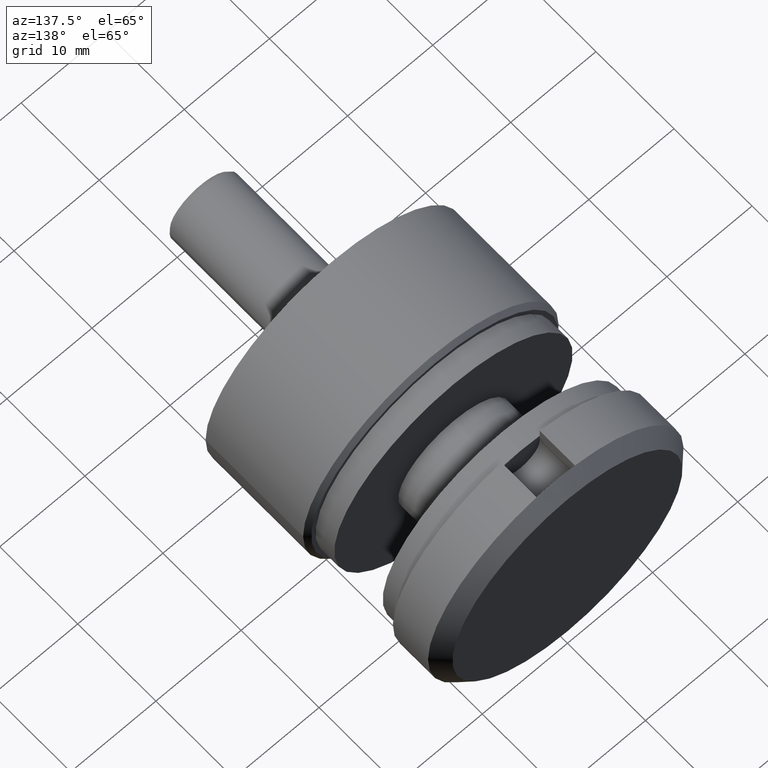
[diagram: clean part render]
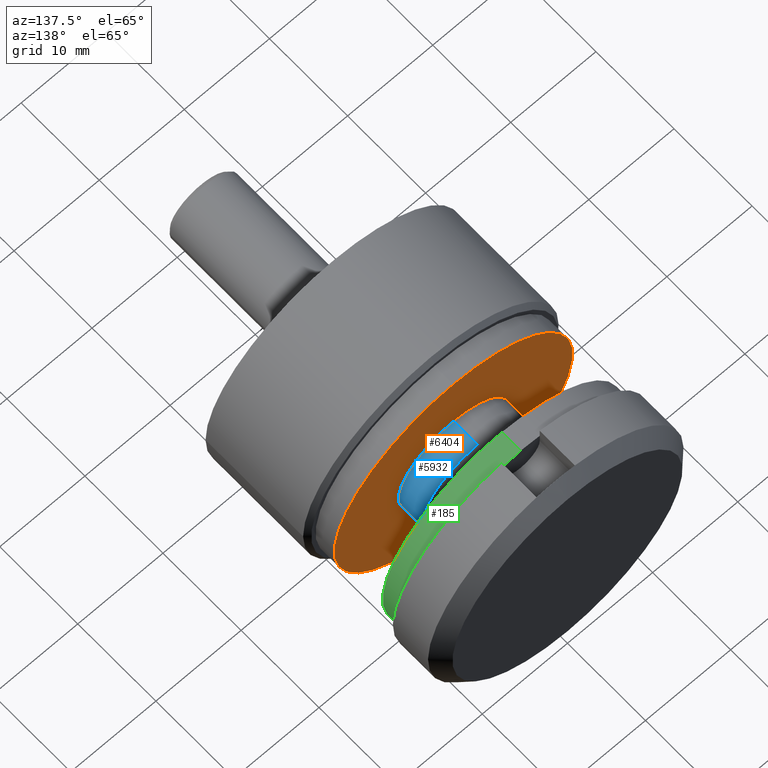
[diagram: same view with three faces highlighted in distinct colors, each labeled with its STEP entity id]
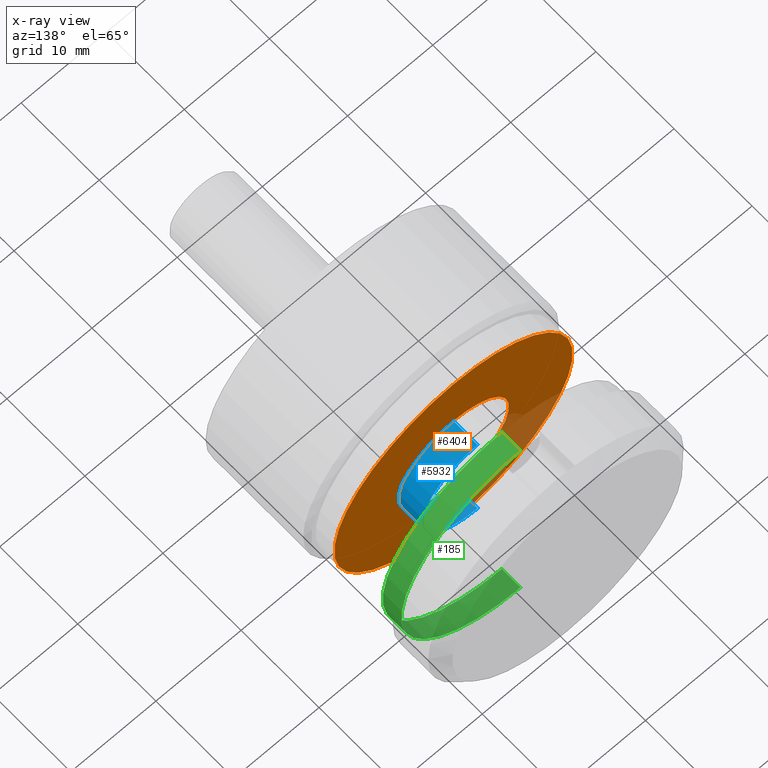
[diagram: x-ray of the same camera — body ghosted, the three highlighted faces saturated]
A machine part, auxiliary view with three faces highlighted in distinct colors.
The next image is the same camera in x-ray (body ghosted, the three faces saturated) — at least one of them is partly hidden behind the body in this view.
Their STEP definitions:

[orange] entity #6404 — the highlighted planar face has unit normal (0, 1, 0).
#458 = DIRECTION ( 'NONE',  ( 0.000000000000000000, 0.000000000000000000, -1.000000000000000000 ) ) ;
#991 = DIRECTION ( 'NONE',  ( 0.000000000000000000, -0.000000000000000000, 1.000000000000000000 ) ) ;
#1909 = DIRECTION ( 'NONE',  ( -0.000000000000000000, -1.000000000000000000, -0.000000000000000000 ) ) ;
#2690 = EDGE_LOOP ( 'NONE', ( #5289, #2822 ) ) ;
#2755 = AXIS2_PLACEMENT_3D ( 'NONE', #13704, #4152, #5373 ) ;
#2822 = ORIENTED_EDGE ( 'NONE', *, *, #7970, .T. ) ;
#2877 = CARTESIAN_POINT ( 'NONE',  ( 1.714505518806294638E-15, 2.399999999999999911, 14.00000000000000000 ) ) ;
#3010 = FACE_OUTER_BOUND ( 'NONE', #11931, .T. ) ;
#3505 = CIRCLE ( 'NONE', #3657, 6.500000000000000000 ) ;
#3657 = AXIS2_PLACEMENT_3D ( 'NONE', #7764, #4283, #458 ) ;
#3809 = AXIS2_PLACEMENT_3D ( 'NONE', #15114, #1909, #7878 ) ;
#4152 = DIRECTION ( 'NONE',  ( -0.000000000000000000, -1.000000000000000000, -0.000000000000000000 ) ) ;
#4159 = FACE_BOUND ( 'NONE', #2690, .T. ) ;
#4283 = DIRECTION ( 'NONE',  ( -0.000000000000000000, -1.000000000000000000, -0.000000000000000000 ) ) ;
#4286 = EDGE_CURVE ( 'NONE', #15758, #4973, #8585, .T. ) ;
#4366 = DIRECTION ( 'NONE',  ( -0.000000000000000000, -1.000000000000000000, -0.000000000000000000 ) ) ;
#4973 = VERTEX_POINT ( 'NONE', #15163 ) ;
#5289 = ORIENTED_EDGE ( 'NONE', *, *, #10770, .T. ) ;
#5373 = DIRECTION ( 'NONE',  ( 0.000000000000000000, 0.000000000000000000, -1.000000000000000000 ) ) ;
#5769 = CARTESIAN_POINT ( 'NONE',  ( 7.960204194457796463E-16, 2.399999999999999023, 6.500000000000000888 ) ) ;
#6404 = ADVANCED_FACE ( 'NONE', ( #4159, #3010 ), #11927, .T. ) ;
#6591 = CARTESIAN_POINT ( 'NONE',  ( 0.000000000000000000, 2.399999999999999023, 0.000000000000000000 ) ) ;
#7603 = VERTEX_POINT ( 'NONE', #5769 ) ;
#7764 = CARTESIAN_POINT ( 'NONE',  ( 0.000000000000000000, 2.399999999999999023, 0.000000000000000000 ) ) ;
#7878 = DIRECTION ( 'NONE',  ( 0.000000000000000000, 0.000000000000000000, -1.000000000000000000 ) ) ;
#7970 = EDGE_CURVE ( 'NONE', #7603, #13804, #8634, .T. ) ;
#8189 = CIRCLE ( 'NONE', #2755, 14.00000000000000000 ) ;
#8585 = CIRCLE ( 'NONE', #3809, 14.00000000000000000 ) ;
#8634 = CIRCLE ( 'NONE', #8999, 6.500000000000000000 ) ;
#8999 = AXIS2_PLACEMENT_3D ( 'NONE', #6591, #4366, #15077 ) ;
#9450 = CARTESIAN_POINT ( 'NONE',  ( 14.00000000000000000, 2.399999999999999467, 0.000000000000000000 ) ) ;
#10770 = EDGE_CURVE ( 'NONE', #13804, #7603, #3505, .T. ) ;
#10934 = ORIENTED_EDGE ( 'NONE', *, *, #4286, .F. ) ;
#11927 = PLANE ( 'NONE',  #12099 ) ;
#11931 = EDGE_LOOP ( 'NONE', ( #13714, #10934 ) ) ;
#12099 = AXIS2_PLACEMENT_3D ( 'NONE', #9450, #13084, #991 ) ;
#13084 = DIRECTION ( 'NONE',  ( 0.000000000000000000, 1.000000000000000000, 0.000000000000000000 ) ) ;
#13704 = CARTESIAN_POINT ( 'NONE',  ( 0.000000000000000000, 2.399999999999999911, 0.000000000000000000 ) ) ;
#13714 = ORIENTED_EDGE ( 'NONE', *, *, #15575, .F. ) ;
#13804 = VERTEX_POINT ( 'NONE', #15369 ) ;
#15077 = DIRECTION ( 'NONE',  ( 0.000000000000000000, 0.000000000000000000, -1.000000000000000000 ) ) ;
#15114 = CARTESIAN_POINT ( 'NONE',  ( 0.000000000000000000, 2.399999999999999911, 0.000000000000000000 ) ) ;
#15163 = CARTESIAN_POINT ( 'NONE',  ( 0.000000000000000000, 2.399999999999999911, -14.00000000000000000 ) ) ;
#15369 = CARTESIAN_POINT ( 'NONE',  ( 0.000000000000000000, 2.399999999999999023, -6.500000000000000000 ) ) ;
#15575 = EDGE_CURVE ( 'NONE', #4973, #15758, #8189, .T. ) ;
#15758 = VERTEX_POINT ( 'NONE', #2877 ) ;

[blue] entity #5932 — the highlighted cylindrical surface (partial cylindrical patch) has radius 6.5 mm, axis along (-0, -1, -0).
#458 = DIRECTION ( 'NONE',  ( 0.000000000000000000, 0.000000000000000000, -1.000000000000000000 ) ) ;
#2333 = DIRECTION ( 'NONE',  ( 0.000000000000000000, 0.000000000000000000, -1.000000000000000000 ) ) ;
#3505 = CIRCLE ( 'NONE', #3657, 6.500000000000000000 ) ;
#3613 = CIRCLE ( 'NONE', #9225, 6.499999999999999112 ) ;
#3657 = AXIS2_PLACEMENT_3D ( 'NONE', #7764, #4283, #458 ) ;
#4283 = DIRECTION ( 'NONE',  ( -0.000000000000000000, -1.000000000000000000, -0.000000000000000000 ) ) ;
#4568 = CARTESIAN_POINT ( 'NONE',  ( 0.000000000000000000, 5.500000000000000000, -6.499999999999999112 ) ) ;
#4636 = LINE ( 'NONE', #5098, #12057 ) ;
#5098 = CARTESIAN_POINT ( 'NONE',  ( 0.000000000000000000, 0.000000000000000000, -6.499999999999999112 ) ) ;
#5769 = CARTESIAN_POINT ( 'NONE',  ( 7.960204194457796463E-16, 2.399999999999999023, 6.500000000000000888 ) ) ;
#5932 = ADVANCED_FACE ( 'NONE', ( #13997 ), #11332, .T. ) ;
#6002 = ORIENTED_EDGE ( 'NONE', *, *, #12557, .T. ) ;
#6780 = ORIENTED_EDGE ( 'NONE', *, *, #10770, .F. ) ;
#6803 = ORIENTED_EDGE ( 'NONE', *, *, #9498, .F. ) ;
#7337 = CARTESIAN_POINT ( 'NONE',  ( 0.000000000000000000, 5.500000000000000000, 0.000000000000000000 ) ) ;
#7603 = VERTEX_POINT ( 'NONE', #5769 ) ;
#7764 = CARTESIAN_POINT ( 'NONE',  ( 0.000000000000000000, 2.399999999999999023, 0.000000000000000000 ) ) ;
#8302 = EDGE_LOOP ( 'NONE', ( #10148, #6002, #6780, #6803 ) ) ;
#8353 = DIRECTION ( 'NONE',  ( -0.000000000000000000, -1.000000000000000000, -0.000000000000000000 ) ) ;
#8519 = DIRECTION ( 'NONE',  ( -0.000000000000000000, -1.000000000000000000, -0.000000000000000000 ) ) ;
#8854 = VERTEX_POINT ( 'NONE', #4568 ) ;
#9095 = AXIS2_PLACEMENT_3D ( 'NONE', #11995, #8353, #2333 ) ;
#9225 = AXIS2_PLACEMENT_3D ( 'NONE', #7337, #8519, #14631 ) ;
#9498 = EDGE_CURVE ( 'NONE', #8854, #13804, #4636, .T. ) ;
#9871 = EDGE_CURVE ( 'NONE', #8854, #15358, #3613, .T. ) ;
#10148 = ORIENTED_EDGE ( 'NONE', *, *, #9871, .T. ) ;
#10770 = EDGE_CURVE ( 'NONE', #13804, #7603, #3505, .T. ) ;
#10963 = DIRECTION ( 'NONE',  ( -0.000000000000000000, -1.000000000000000000, -0.000000000000000000 ) ) ;
#11332 = CYLINDRICAL_SURFACE ( 'NONE', #9095, 6.499999999999999112 ) ;
#11836 = LINE ( 'NONE', #12142, #14655 ) ;
#11995 = CARTESIAN_POINT ( 'NONE',  ( 0.000000000000000000, 0.000000000000000000, 0.000000000000000000 ) ) ;
#12057 = VECTOR ( 'NONE', #13442, 1000.000000000000000 ) ;
#12142 = CARTESIAN_POINT ( 'NONE',  ( 7.960204194457794491E-16, 0.000000000000000000, 6.499999999999999112 ) ) ;
#12557 = EDGE_CURVE ( 'NONE', #15358, #7603, #11836, .T. ) ;
#13442 = DIRECTION ( 'NONE',  ( -0.000000000000000000, -1.000000000000000000, -0.000000000000000000 ) ) ;
#13804 = VERTEX_POINT ( 'NONE', #15369 ) ;
#13997 = FACE_OUTER_BOUND ( 'NONE', #8302, .T. ) ;
#14260 = CARTESIAN_POINT ( 'NONE',  ( 7.960204194457794491E-16, 5.500000000000000000, 6.499999999999999112 ) ) ;
#14631 = DIRECTION ( 'NONE',  ( 0.000000000000000000, 0.000000000000000000, -1.000000000000000000 ) ) ;
#14655 = VECTOR ( 'NONE', #10963, 1000.000000000000000 ) ;
#15358 = VERTEX_POINT ( 'NONE', #14260 ) ;
#15369 = CARTESIAN_POINT ( 'NONE',  ( 0.000000000000000000, 2.399999999999999023, -6.500000000000000000 ) ) ;

[green] entity #185 — the highlighted cylindrical surface (partial cylindrical patch) has radius 14 mm, axis along (0, 1, -0).
#89 = DIRECTION ( 'NONE',  ( -0.000000000000000000, -1.000000000000000000, -0.000000000000000000 ) ) ;
#185 = ADVANCED_FACE ( 'NONE', ( #5339 ), #4419, .T. ) ;
#925 = ORIENTED_EDGE ( 'NONE', *, *, #6073, .T. ) ;
#1202 = CARTESIAN_POINT ( 'NONE',  ( 0.000000000000000000, 0.000000000000000000, -14.00000000000000000 ) ) ;
#1324 = DIRECTION ( 'NONE',  ( -0.000000000000000000, -1.000000000000000000, -0.000000000000000000 ) ) ;
#1478 = CIRCLE ( 'NONE', #5344, 14.00000000000000000 ) ;
#1819 = CARTESIAN_POINT ( 'NONE',  ( 1.714505518806294638E-15, 0.000000000000000000, 14.00000000000000000 ) ) ;
#1909 = DIRECTION ( 'NONE',  ( -0.000000000000000000, -1.000000000000000000, -0.000000000000000000 ) ) ;
#2208 = CARTESIAN_POINT ( 'NONE',  ( 0.000000000000000000, 0.000000000000000000, 0.000000000000000000 ) ) ;
#2289 = DIRECTION ( 'NONE',  ( -0.000000000000000000, -1.000000000000000000, -0.000000000000000000 ) ) ;
#2311 = DIRECTION ( 'NONE',  ( -0.000000000000000000, -1.000000000000000000, -0.000000000000000000 ) ) ;
#2343 = VERTEX_POINT ( 'NONE', #1819 ) ;
#2459 = ORIENTED_EDGE ( 'NONE', *, *, #5899, .F. ) ;
#2877 = CARTESIAN_POINT ( 'NONE',  ( 1.714505518806294638E-15, 2.399999999999999911, 14.00000000000000000 ) ) ;
#3809 = AXIS2_PLACEMENT_3D ( 'NONE', #15114, #1909, #7878 ) ;
#4286 = EDGE_CURVE ( 'NONE', #15758, #4973, #8585, .T. ) ;
#4419 = CYLINDRICAL_SURFACE ( 'NONE', #9172, 14.00000000000000000 ) ;
#4632 = DIRECTION ( 'NONE',  ( 0.000000000000000000, 0.000000000000000000, -1.000000000000000000 ) ) ;
#4766 = EDGE_CURVE ( 'NONE', #15758, #2343, #12130, .T. ) ;
#4920 = ORIENTED_EDGE ( 'NONE', *, *, #4286, .T. ) ;
#4973 = VERTEX_POINT ( 'NONE', #15163 ) ;
#5339 = FACE_OUTER_BOUND ( 'NONE', #13251, .T. ) ;
#5344 = AXIS2_PLACEMENT_3D ( 'NONE', #15596, #2289, #8311 ) ;
#5899 = EDGE_CURVE ( 'NONE', #2343, #11467, #1478, .T. ) ;
#6073 = EDGE_CURVE ( 'NONE', #4973, #11467, #8099, .T. ) ;
#7051 = CARTESIAN_POINT ( 'NONE',  ( 1.714505518806294638E-15, 0.000000000000000000, 14.00000000000000000 ) ) ;
#7878 = DIRECTION ( 'NONE',  ( 0.000000000000000000, 0.000000000000000000, -1.000000000000000000 ) ) ;
#8099 = LINE ( 'NONE', #14614, #10960 ) ;
#8311 = DIRECTION ( 'NONE',  ( 0.000000000000000000, 0.000000000000000000, -1.000000000000000000 ) ) ;
#8585 = CIRCLE ( 'NONE', #3809, 14.00000000000000000 ) ;
#9060 = ORIENTED_EDGE ( 'NONE', *, *, #4766, .F. ) ;
#9172 = AXIS2_PLACEMENT_3D ( 'NONE', #2208, #2311, #4632 ) ;
#10960 = VECTOR ( 'NONE', #1324, 1000.000000000000000 ) ;
#11467 = VERTEX_POINT ( 'NONE', #1202 ) ;
#12130 = LINE ( 'NONE', #7051, #14943 ) ;
#13251 = EDGE_LOOP ( 'NONE', ( #9060, #4920, #925, #2459 ) ) ;
#14614 = CARTESIAN_POINT ( 'NONE',  ( 0.000000000000000000, 0.000000000000000000, -14.00000000000000000 ) ) ;
#14943 = VECTOR ( 'NONE', #89, 1000.000000000000000 ) ;
#15114 = CARTESIAN_POINT ( 'NONE',  ( 0.000000000000000000, 2.399999999999999911, 0.000000000000000000 ) ) ;
#15163 = CARTESIAN_POINT ( 'NONE',  ( 0.000000000000000000, 2.399999999999999911, -14.00000000000000000 ) ) ;
#15596 = CARTESIAN_POINT ( 'NONE',  ( 0.000000000000000000, 0.000000000000000000, 0.000000000000000000 ) ) ;
#15758 = VERTEX_POINT ( 'NONE', #2877 ) ;